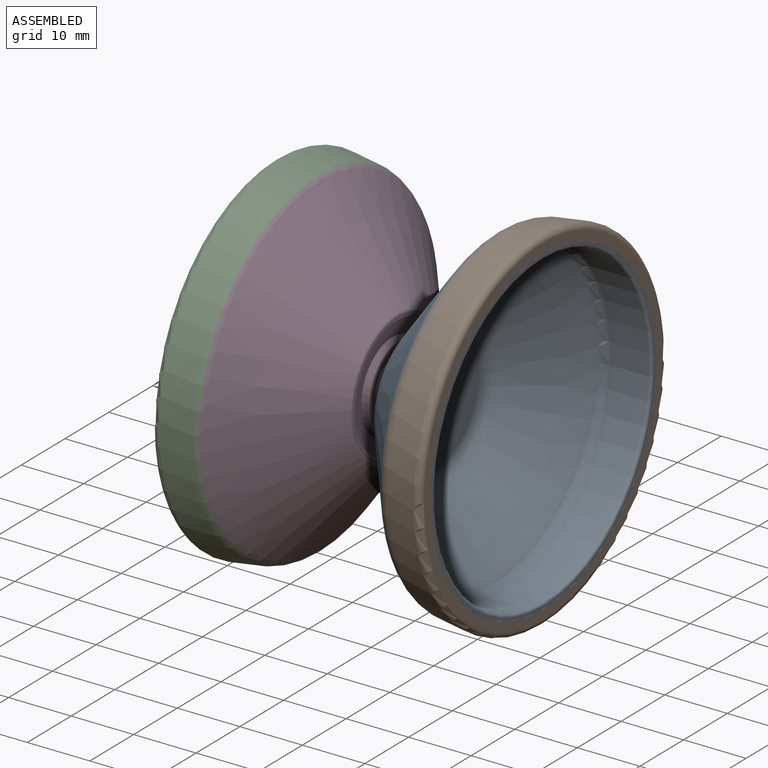
[diagram: assembled view]
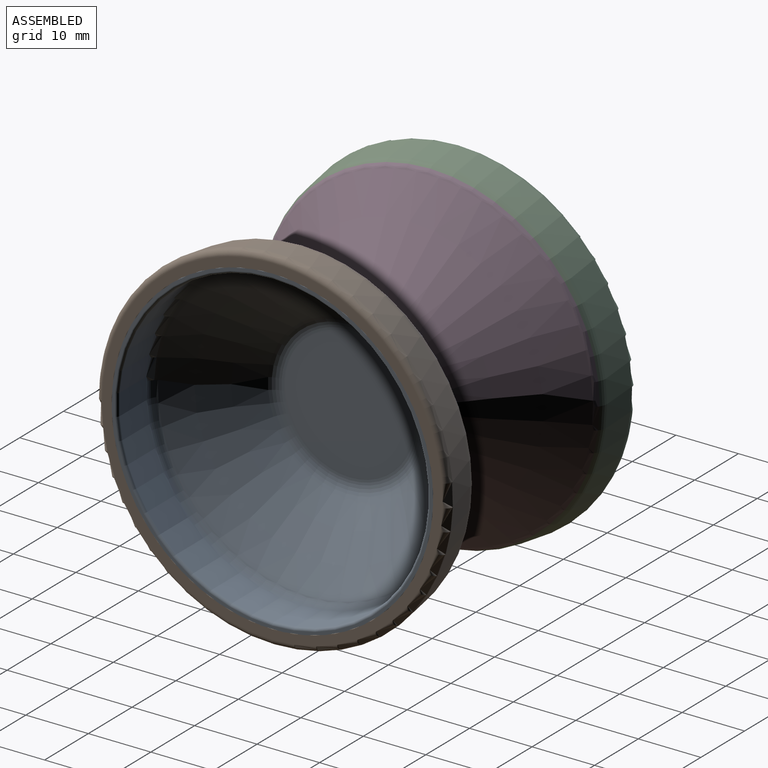
[diagram: assembled view, second angle]
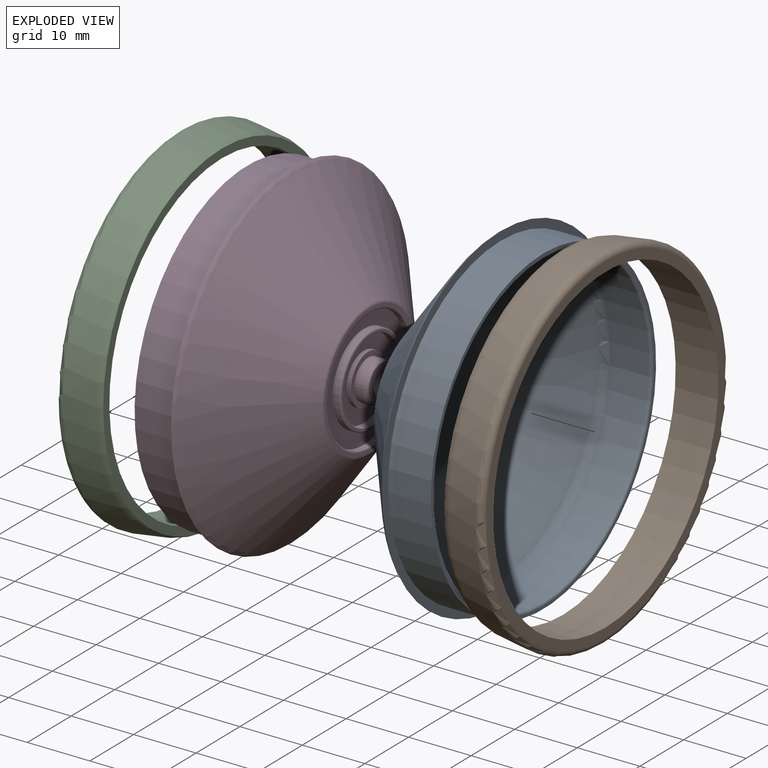
[diagram: exploded view]
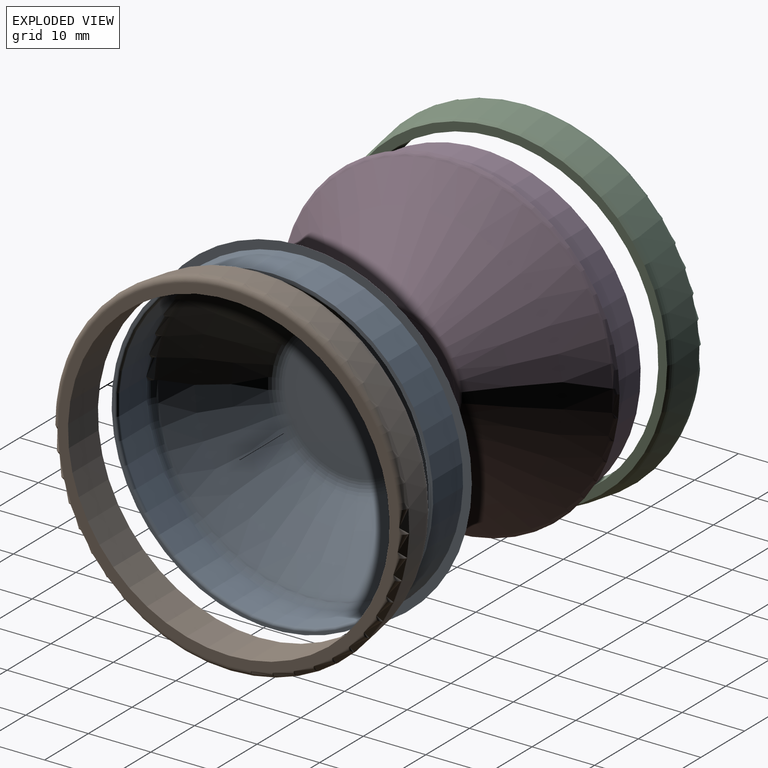
[diagram: exploded view, second angle]
ASSEMBLY  parts=4 mates=3
PART A: 31 faces, bbox 21.5x59.7x59.7 mm
  f0: cylinder r=3.19mm len=6.37mm, axis (1,0,0), area 29.4mm2, adj f1,f30
  f1: plane 8x8mm, normal (1,0,0), area 18.3mm2, adj f0,f2
  f2: cylinder r=4mm len=8mm, axis (1,0,0), area 17.6mm2, adj f1,f3
  f3: plane 12.98x12.98mm, normal (1,0,0), area 82.2mm2, adj f2,f4
  f4: cylinder r=6.49mm len=12.98mm, axis (1,0,0), area 46.1mm2, adj f3,f5
  f5: torus R=6.62mm, axis (1,0,0), area 8.2mm2, adj f4,f6
  f6: plane 13.79x13.79mm, normal (1,0,0), area 11.8mm2, adj f5,f7
  f7: torus R=6.9mm, axis (1,0,0), area 17.7mm2, adj f6,f8
  f8: cylinder r=7.15mm len=14.3mm, axis (1,0,0), area 45.2mm2, adj f7,f9
  f9: plane 19.3x19.3mm, normal (1,0,0), area 132mm2, adj f8,f10
  f10: cone r=9.65mm half-angle=0.1deg, axis (1,0,0), area 45.5mm2, adj f9,f11
  f11: torus R=9.91mm, axis (1,0,0), area 24.4mm2, adj f10,f12
  f12: plane 20.86x20.86mm, normal (1,0,0), area 33.4mm2, adj f11,f13
  f13: torus R=10.43mm, axis (1,0,0), area 30.6mm2, adj f12,f14
  f14: cone r=10.85mm half-angle=52.4deg, axis (-1,0,0), area 2322.3mm2, adj f13,f15
  f15: torus R=24.99mm, axis (1,0,0), area 150.8mm2, adj f14,f16
  f16: plane 54.27x54.27mm, normal (-1,0,0), area 233.4mm2, adj f15,f17
  f17: cylinder r=25.73mm len=51.46mm, axis (1,0,0), area 1104.2mm2, adj f16,f18
  f18: plane 51.46x51.46mm, normal (-1,0,0), area 77.3mm2, adj f17,f19
  f19: torus R=25.25mm, axis (1,0,0), area 109.2mm2, adj f18,f20
  f20: cylinder r=24.8mm len=49.61mm, axis (1,0,0), area 947.2mm2, adj f19,f21
  f21: torus R=22.81mm, axis (1,0,0), area 281.3mm2, adj f20,f22
  f22: cone r=24.03mm half-angle=52.4deg, axis (-1,0,0), area 1663.4mm2, adj f21,f23
  f23: torus R=10.5mm, axis (1,0,0), area 162.2mm2, adj f22,f24
  f24: plane 20.99x20.99mm, normal (-1,0,0), area 346.2mm2, adj f23
  f25: cone r=1.75mm half-angle=87.6deg, axis (1,0,0), area 9.6mm2, adj f26
  f26: cylinder r=1.75mm len=3.5mm, axis (1,0,0), area 31.2mm2, adj f25,f27
  f27: plane 5.93x5.93mm, normal (1,0,0), area 18mm2, adj f26,f28
  f28: torus R=2.86mm, axis (1,0,0), area 2.8mm2, adj f27,f29
  f29: cone r=3.05mm half-angle=14.8deg, axis (-1,0,0), area 10mm2, adj f28,f30
  f30: torus R=3.06mm, axis (1,0,0), area 0.8mm2, adj f0,f29
PART B: 6 faces, bbox 7.2x61.1x61.1 mm
  f0: plane 54.27x54.27mm, normal (1,0,0), area 233.4mm2, adj f1,f5
  f1: torus R=24.99mm, axis (-1,0,0), area 199mm2, adj f0,f2
  f2: cone r=27.54mm half-angle=8deg, axis (-1,0,0), area 824.7mm2, adj f1,f3
  f3: torus R=27.25mm, axis (-1,0,0), area 287.9mm2, adj f2,f4
  f4: plane 54.5x54.5mm, normal (-1,0,0), area 252.6mm2, adj f3,f5
  f5: cylinder r=25.73mm len=51.46mm, axis (-1,0,0), area 1104.2mm2, adj f0,f4
PART C: same geometry as B
PART D: same geometry as A
PLACE A rot(axis=(0,1,0),180deg) t=(49.41,15.94,-5.77)mm
PLACE B rot(axis=(0,1,0),180deg) t=(49.41,15.94,-5.77)mm
PLACE C t=(40.55,15.94,-5.77)mm
PLACE D t=(40.55,15.94,-5.77)mm
MATE revolute B.f1 <-> A.f0  axis (1,0,0) through (63.01,15.94,-5.77)mm
MATE fastened C.f1 <-> D.f0  axis (-1,0,0) through (26.95,15.94,-5.77)mm
MATE revolute A.f0 <-> D.f0  axis (-1,0,0) through (44.92,15.94,-5.77)mm
